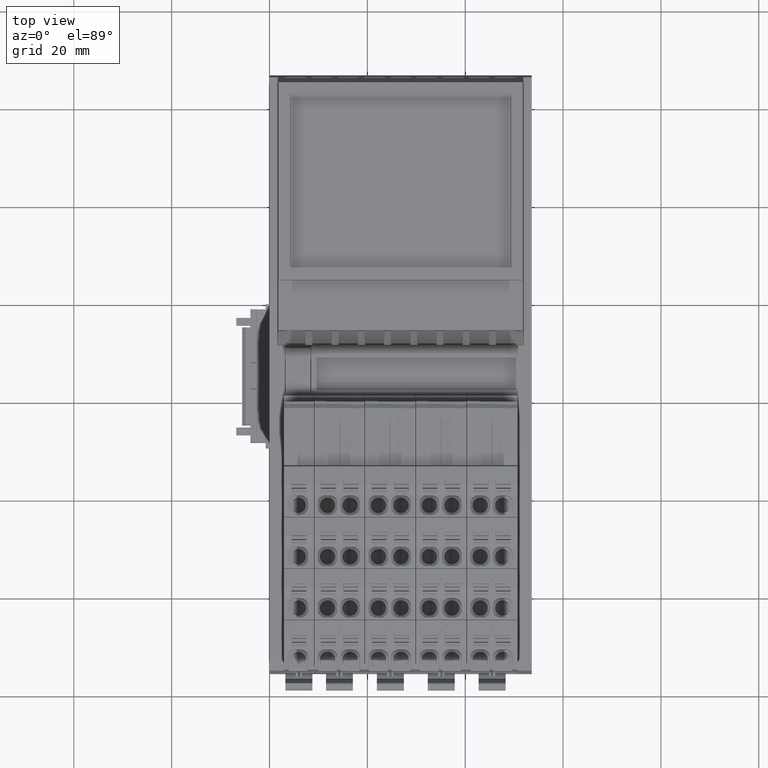
[diagram: clean part render]
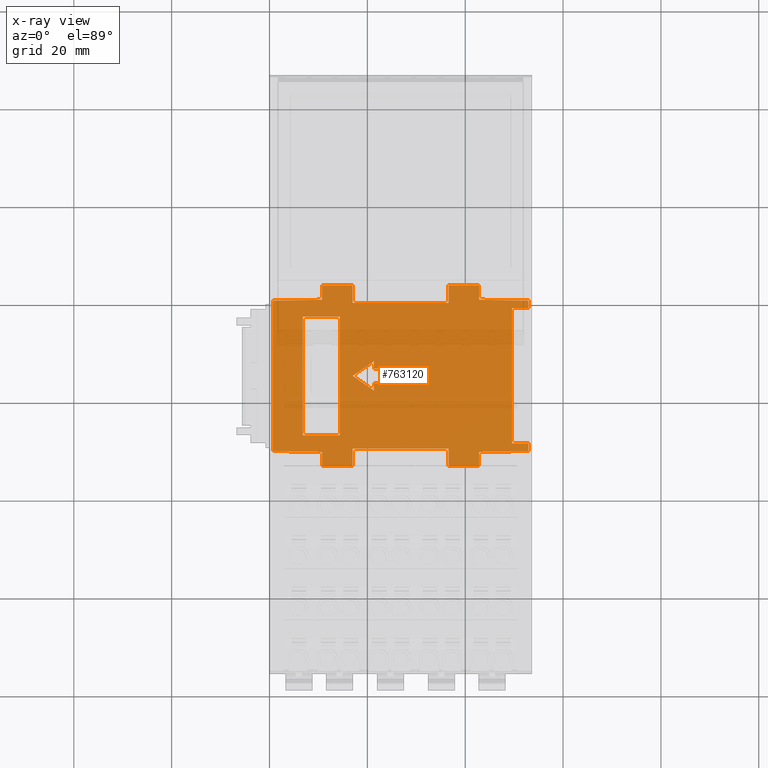
[diagram: x-ray — body ghosted, one internal face saturated and labeled with its STEP entity id]
A machine part, top view, then the same camera in x-ray: the body is ghosted and one INTERNAL B-rep face — a face not visible from any outside direction — is saturated and labeled: STEP entity #763120.
In plain terms, the highlighted planar face has unit normal (0, 0, -1).
Its self-contained STEP definition (entity closure, byte-faithful):
#663890=CARTESIAN_POINT('',(-15.5525499087241,2.99999999998455,
24.8500000010141));
#663900=VERTEX_POINT('',#663890);
#663930=CARTESIAN_POINT('',(-15.9376686943677,2.99999999998418,
2.79999999999967));
#663940=DIRECTION('',(0.0174630412089708,1.64087493594967E-14,
0.999847509469186));
#663950=VECTOR('',#663940,1.);
#663960=LINE('',#663930,#663950);
#663970=CARTESIAN_POINT('',(-15.3772024968847,2.99999999998471,
34.8895269609261));
#663980=VERTEX_POINT('',#663970);
#663990=EDGE_CURVE('',#663900,#663980,#663960,.T.);
#689030=CARTESIAN_POINT('',(1.50307890379044,3.00000000000082,
2.79999999999972));
#689040=DIRECTION('',(5.12567408284352E-11,-2.48094488399691E-16,1.));
#689050=VECTOR('',#689040,1.);
#689060=LINE('',#689030,#689050);
#689070=CARTESIAN_POINT('',(1.50307890403527,3.00000000000082,
7.57657447990371));
#689080=VERTEX_POINT('',#689070);
#689090=CARTESIAN_POINT('',(1.50307890404787,3.00000000000082,
7.82228866659571));
#689100=VERTEX_POINT('',#689090);
#689110=EDGE_CURVE('',#689080,#689100,#689060,.T.);
#689640=CARTESIAN_POINT('',(-12.1500000000179,2.99999999998779,
28.800123264971));
#689650=VERTEX_POINT('',#689640);
#689680=CARTESIAN_POINT('',(-12.1500000000179,2.9999999999878,
2.79999999999967));
#689690=DIRECTION('',(-1.22464679913189E-16,2.48094537303158E-16,-1.));
#689700=VECTOR('',#689690,1.);
#689710=LINE('',#689680,#689700);
#689720=CARTESIAN_POINT('',(-12.1500000000179,2.99999999998779,
21.2500000004907));
#689730=VERTEX_POINT('',#689720);
#689740=EDGE_CURVE('',#689650,#689730,#689710,.T.);
#690300=CARTESIAN_POINT('',(-17.5413454074475,2.99999999998265,
21.2500000004907));
#690310=DIRECTION('',(1.,9.54070156210768E-13,-1.22464679913549E-16));
#690320=VECTOR('',#690310,1.);
#690330=LINE('',#690300,#690320);
#690340=CARTESIAN_POINT('',(12.1500018849931,3.00000000001098,
21.2500000004907));
#690350=VERTEX_POINT('',#690340);
#690360=EDGE_CURVE('',#689730,#690350,#690330,.T.);
#690680=CARTESIAN_POINT('',(12.1500018852508,3.00000000001098,
2.79999999999967));
#690690=DIRECTION('',(-1.39682381849476E-11,-2.48094550629684E-16,1.));
#690700=VECTOR('',#690690,1.);
#690710=LINE('',#690680,#690700);
#690720=CARTESIAN_POINT('',(12.1500018848876,3.00000000001098,
28.8001232655858));
#690730=VERTEX_POINT('',#690720);
#690740=EDGE_CURVE('',#690350,#690730,#690710,.T.);
#708380=CARTESIAN_POINT('',(-17.5413454074475,2.99999999998265,
28.8001232648346));
#708390=DIRECTION('',(1.,9.54070156210762E-13,2.53006872261151E-11));
#708400=VECTOR('',#708390,1.);
#708410=LINE('',#708380,#708400);
#708420=EDGE_CURVE('',#689650,#690730,#708410,.T.);
#710330=CARTESIAN_POINT('',(-18.4999993603891,2.99999999998174,
2.79999999999972));
#710340=DIRECTION('',(-1.39655241635942E-11,-2.48094550628069E-16,1.));
#710350=VECTOR('',#710340,1.);
#710360=LINE('',#710330,#710350);
#710370=CARTESIAN_POINT('',(-18.49999936061,2.99999999998174,
18.6134579217745));
#710380=VERTEX_POINT('',#710370);
#710390=CARTESIAN_POINT('',(-18.4999993606971,2.99999999998173,
24.8500000012063));
#710400=VERTEX_POINT('',#710390);
#710410=EDGE_CURVE('',#710380,#710400,#710360,.T.);
#711280=CARTESIAN_POINT('',(-14.8996952278539,2.99999999998517,
18.6134579218248));
#711290=VERTEX_POINT('',#711280);
#711320=CARTESIAN_POINT('',(-17.5413454074475,2.99999999998265,
18.6134579217879));
#711330=DIRECTION('',(-1.,-9.54070156210766E-13,-1.39655241635942E-11));
#711340=VECTOR('',#711330,1.);
#711350=LINE('',#711320,#711340);
#711360=EDGE_CURVE('',#711290,#710380,#711350,.T.);
#711640=CARTESIAN_POINT('',(-17.5413454074475,2.99999999998265,
24.8500000011438));
#711650=DIRECTION('',(-1.,-9.54070156210775E-13,6.52222563283775E-11));
#711660=VECTOR('',#711650,1.);
#711670=LINE('',#711640,#711660);
#711680=EDGE_CURVE('',#663900,#710400,#711670,.T.);
#713090=CARTESIAN_POINT('',(-14.8996952278539,2.99999999998518,
-1.01345792007181));
#713100=VERTEX_POINT('',#713090);
#713130=CARTESIAN_POINT('',(-14.8996952278539,2.99999999998518,
2.79999999999972));
#713140=DIRECTION('',(2.22181972365825E-17,2.48094537303296E-16,-1.));
#713150=VECTOR('',#713140,1.);
#713160=LINE('',#713130,#713150);
#713170=EDGE_CURVE('',#711290,#713100,#713160,.T.);
#713970=CARTESIAN_POINT('',(-18.4999993602488,2.99999999998174,
-7.25000000061527));
#713980=VERTEX_POINT('',#713970);
#714010=CARTESIAN_POINT('',(-18.4999993603891,2.99999999998174,
2.79999999999972));
#714020=DIRECTION('',(-1.39655241635942E-11,-2.48094550628069E-16,1.));
#714030=VECTOR('',#714020,1.);
#714040=LINE('',#714010,#714030);
#714050=CARTESIAN_POINT('',(-18.4999993603359,2.99999999998174,
-1.01345791983699));
#714060=VERTEX_POINT('',#714050);
#714070=EDGE_CURVE('',#713980,#714060,#714040,.T.);
#715770=CARTESIAN_POINT('',(-17.5413454074475,2.99999999998266,
-1.01345791989952));
#715780=DIRECTION('',(-1.,-9.54070156210775E-13,6.52222563283775E-11));
#715790=VECTOR('',#715780,1.);
#715800=LINE('',#715770,#715790);
#715810=EDGE_CURVE('',#713100,#714060,#715800,.T.);
#716600=CARTESIAN_POINT('',(-15.552549908736,2.99999999998455,
-7.2500000005741));
#716610=VERTEX_POINT('',#716600);
#716640=CARTESIAN_POINT('',(-17.5413454074475,2.99999999998266,
-7.25000000060188));
#716650=DIRECTION('',(-1.,-9.54070156210764E-13,-1.39655241635942E-11));
#716660=VECTOR('',#716650,1.);
#716670=LINE('',#716640,#716660);
#716680=EDGE_CURVE('',#716610,#713980,#716670,.T.);
#716980=CARTESIAN_POINT('',(-15.3770195778805,2.99999999998472,
-17.3000000001173));
#716990=VERTEX_POINT('',#716980);
#717020=CARTESIAN_POINT('',(-15.7280802396095,2.99999999998438,
2.79999999999967));
#717030=DIRECTION('',(-0.0174630412089708,-1.69100844440611E-14,
0.999847509469186));
#717040=VECTOR('',#717030,1.);
#717050=LINE('',#717020,#717040);
#717060=EDGE_CURVE('',#716990,#716610,#717050,.T.);
#717830=CARTESIAN_POINT('',(15.5525499088917,3.00000000001422,
24.850000000217));
#717840=VERTEX_POINT('',#717830);
#717870=CARTESIAN_POINT('',(-17.5413454074475,2.99999999998265,
24.8499999997548));
#717880=DIRECTION('',(1.,9.54070156210764E-13,1.39655241635942E-11));
#717890=VECTOR('',#717880,1.);
#717900=LINE('',#717870,#717890);
#717910=CARTESIAN_POINT('',(18.5000000000598,3.00000000001704,
24.8500000002582));
#717920=VERTEX_POINT('',#717910);
#717930=EDGE_CURVE('',#717840,#717920,#717900,.T.);
#718610=CARTESIAN_POINT('',(18.5000000003677,3.00000000001704,
2.79999999999972));
#718620=DIRECTION('',(1.39655241635942E-11,2.48094550628069E-16,-1.));
#718630=VECTOR('',#718620,1.);
#718640=LINE('',#718610,#718630);
#718650=CARTESIAN_POINT('',(18.5000000001468,3.00000000001704,
18.6134579222912));
#718660=VERTEX_POINT('',#718650);
#718670=EDGE_CURVE('',#717920,#718660,#718640,.T.);
#718910=CARTESIAN_POINT('',(-17.5413454074475,2.99999999998265,
18.6134579217879));
#718920=DIRECTION('',(-1.,-9.54070156210766E-13,-1.39655241635942E-11));
#718930=VECTOR('',#718920,1.);
#718940=LINE('',#718910,#718930);
#718950=CARTESIAN_POINT('',(14.8996952280992,3.0000000000136,
18.6134579222409));
#718960=VERTEX_POINT('',#718950);
#718970=EDGE_CURVE('',#718660,#718960,#718940,.T.);
#719510=CARTESIAN_POINT('',(14.89969522832,3.00000000001361,
2.79999999999972));
#719520=DIRECTION('',(-1.39678671865603E-11,-2.48094550629046E-16,1.));
#719530=VECTOR('',#719520,1.);
#719540=LINE('',#719510,#719530);
#719550=CARTESIAN_POINT('',(14.8996952283733,3.00000000001361,
-1.01345792201539));
#719560=VERTEX_POINT('',#719550);
#719570=EDGE_CURVE('',#719560,#718960,#719540,.T.);
#725140=CARTESIAN_POINT('',(-13.8018901758284,2.99999999998623,
-17.3000000001398));
#725150=VERTEX_POINT('',#725140);
#725200=CARTESIAN_POINT('',(-17.5413454074475,2.99999999998266,
-17.3000000000863));
#725210=DIRECTION('',(-1.,-9.54070156210772E-13,1.42957902460328E-11));
#725220=VECTOR('',#725210,1.);
#725230=LINE('',#725200,#725220);
#725240=EDGE_CURVE('',#725150,#716990,#725230,.T.);
#729260=CARTESIAN_POINT('',(13.8011732772524,3.00000000001256,
-14.0000000002516));
#729270=VERTEX_POINT('',#729260);
#729300=CARTESIAN_POINT('',(-17.5413454074475,2.99999999998266,
-14.0000000001173));
#729310=DIRECTION('',(-1.,-9.54070156210769E-13,4.28367970946833E-12));
#729320=VECTOR('',#729310,1.);
#729330=LINE('',#729300,#729320);
#729340=CARTESIAN_POINT('',(-13.8018901758284,2.99999999998623,
-14.0000000001333));
#729350=VERTEX_POINT('',#729340);
#729360=EDGE_CURVE('',#729270,#729350,#729330,.T.);
#748080=CARTESIAN_POINT('',(-17.5413454074475,2.99999999998265,
34.889526960957));
#748090=DIRECTION('',(1.,9.5407015621077E-13,-1.43124426096209E-11));
#748100=VECTOR('',#748090,1.);
#748110=LINE('',#748080,#748100);
#748120=CARTESIAN_POINT('',(15.3772024969058,3.00000000001405,
34.8895269604859));
#748130=VERTEX_POINT('',#748120);
#748140=EDGE_CURVE('',#663980,#748130,#748110,.T.);
#751560=CARTESIAN_POINT('',(15.5494344815295,3.00000000001423,
-7.25000000013972));
#751570=VERTEX_POINT('',#751560);
#751600=CARTESIAN_POINT('',(15.724964812255,3.00000000001439,
2.79999999999967));
#751610=DIRECTION('',(0.0174630411950042,1.64104840829727E-14,
0.99984750946943));
#751620=VECTOR('',#751610,1.);
#751630=LINE('',#751600,#751620);
#751640=CARTESIAN_POINT('',(15.3739041508042,3.00000000001406,
-17.3000000002644));
#751650=VERTEX_POINT('',#751640);
#751660=EDGE_CURVE('',#751650,#751570,#751630,.T.);
#752410=CARTESIAN_POINT('',(-17.5413454074475,2.99999999998266,
-1.01345791989952));
#752420=DIRECTION('',(-1.,-9.54070156210775E-13,6.52222563283775E-11));
#752430=VECTOR('',#752420,1.);
#752440=LINE('',#752410,#752430);
#752450=CARTESIAN_POINT('',(18.5000000004209,3.00000000001704,
-1.01345792225021));
#752460=VERTEX_POINT('',#752450);
#752470=EDGE_CURVE('',#752460,#719560,#752440,.T.);
#753130=CARTESIAN_POINT('',(-17.5413454074475,2.99999999998266,
-17.3000000001234));
#753140=DIRECTION('',(-1.,-9.54070156210769E-13,4.28367970946833E-12));
#753150=VECTOR('',#753140,1.);
#753160=LINE('',#753130,#753150);
#753170=CARTESIAN_POINT('',(13.8011732772985,3.00000000001256,
-17.3000000002577));
#753180=VERTEX_POINT('',#753170);
#753190=EDGE_CURVE('',#751650,#753180,#753160,.T.);
#754650=CARTESIAN_POINT('',(13.8011732770178,3.00000000001256,
2.80256935017003));
#754660=DIRECTION('',(1.39655266517824E-11,2.95252389967941E-16,-1.));
#754670=VECTOR('',#754660,1.);
#754680=LINE('',#754650,#754670);
#754690=EDGE_CURVE('',#729270,#753180,#754680,.T.);
#754880=CARTESIAN_POINT('',(-13.8018901758284,2.99999999998649,
2.80257560645119));
#754890=DIRECTION('',(-1.2490009027033E-16,-1.43695704205325E-14,-1.));
#754900=VECTOR('',#754890,1.);
#754910=LINE('',#754880,#754900);
#754920=EDGE_CURVE('',#729350,#725150,#754910,.T.);
#755970=CARTESIAN_POINT('',(18.500000000508,3.00000000001704,
-7.25000000009852));
#755980=VERTEX_POINT('',#755970);
#756010=CARTESIAN_POINT('',(-17.5413454074475,2.99999999998266,
-7.25000000060185));
#756020=DIRECTION('',(-1.,-9.54070156210764E-13,-1.39655241635942E-11));
#756030=VECTOR('',#756020,1.);
#756040=LINE('',#756010,#756030);
#756050=EDGE_CURVE('',#755980,#751570,#756040,.T.);
#756930=CARTESIAN_POINT('',(18.5000000003677,3.00000000001704,
2.79999999999972));
#756940=DIRECTION('',(1.39655241635942E-11,2.48094550628069E-16,-1.));
#756950=VECTOR('',#756940,1.);
#756960=LINE('',#756930,#756950);
#756970=EDGE_CURVE('',#752460,#755980,#756960,.T.);
#757190=CARTESIAN_POINT('',(15.9376686948295,3.0000000000146,
2.79999999999967));
#757200=DIRECTION('',(-0.0174630412229362,-1.69100844440611E-14,
0.999847509468942));
#757210=VECTOR('',#757200,1.);
#757220=LINE('',#757190,#757210);
#757230=EDGE_CURVE('',#717840,#748130,#757220,.T.);
#757430=CARTESIAN_POINT('',(-17.5413454074475,2.99999999998265,
8.99820656103086));
#757440=DIRECTION('',(-1.,-9.54070156210782E-13,5.12567408284352E-11));
#757450=VECTOR('',#757440,1.);
#757460=LINE('',#757430,#757450);
#757470=CARTESIAN_POINT('',(1.50307890410814,3.00000000000082,
8.99820656005471));
#757480=VERTEX_POINT('',#757470);
#757490=CARTESIAN_POINT('',(-1.49692109589186,2.99999999999796,
8.99820656020848));
#757500=VERTEX_POINT('',#757490);
#757510=EDGE_CURVE('',#757480,#757500,#757460,.T.);
#757900=CARTESIAN_POINT('',(-1.49692109620956,2.99999999999796,
2.79999999999972));
#757910=DIRECTION('',(-5.12567408284352E-11,2.48094488399691E-16,-1.));
#757920=VECTOR('',#757910,1.);
#757930=LINE('',#757900,#757920);
#757940=CARTESIAN_POINT('',(-1.49692109562231,2.99999999999796,
14.2571009484235));
#757950=VERTEX_POINT('',#757940);
#757960=CARTESIAN_POINT('',(-1.49692109580182,2.99999999999796,
10.7547683793525));
#757970=VERTEX_POINT('',#757960);
#757980=EDGE_CURVE('',#757950,#757970,#757930,.T.);
#758370=CARTESIAN_POINT('',(1.50307890379044,3.00000000000082,
2.79999999999972));
#758380=DIRECTION('',(5.12567408284352E-11,-2.48094488399691E-16,1.));
#758390=VECTOR('',#758380,1.);
#758400=LINE('',#758370,#758390);
#758410=CARTESIAN_POINT('',(1.50307890413406,3.00000000000082,
9.5039353188157));
#758420=VERTEX_POINT('',#758410);
#758430=CARTESIAN_POINT('',(1.50307890417651,3.00000000000082,
10.3320835735297));
#758440=VERTEX_POINT('',#758430);
#758450=EDGE_CURVE('',#758420,#758440,#758400,.T.);
#758840=CARTESIAN_POINT('',(-17.5413454074475,2.99999999998265,
10.7547683801749));
#758850=DIRECTION('',(1.,9.54070156210782E-13,-5.12567408284352E-11));
#758860=VECTOR('',#758850,1.);
#758870=LINE('',#758840,#758860);
#758880=CARTESIAN_POINT('',(1.50307890419818,3.00000000000082,
10.7547683791987));
#758890=VERTEX_POINT('',#758880);
#758900=EDGE_CURVE('',#757970,#758890,#758870,.T.);
#759220=CARTESIAN_POINT('',(-17.5413454074475,2.99999999998265,
9.50393531979185));
#759230=DIRECTION('',(1.,9.54070156210782E-13,-5.12567408284352E-11));
#759240=VECTOR('',#759230,1.);
#759250=LINE('',#759220,#759240);
#759260=CARTESIAN_POINT('',(-1.49692109586594,2.99999999999796,
9.50393531896947));
#759270=VERTEX_POINT('',#759260);
#759280=EDGE_CURVE('',#759270,#758420,#759250,.T.);
#759600=CARTESIAN_POINT('',(-17.5413454074475,2.99999999998265,
8.48922717430986));
#759610=DIRECTION('',(1.,9.54070156210782E-13,-5.12567408284352E-11));
#759620=VECTOR('',#759610,1.);
#759630=LINE('',#759600,#759620);
#759640=CARTESIAN_POINT('',(-1.49692109591795,2.99999999999796,
8.48922717348748));
#759650=VERTEX_POINT('',#759640);
#759660=CARTESIAN_POINT('',(1.50307890408205,3.00000000000082,
8.48922717333371));
#759670=VERTEX_POINT('',#759660);
#759680=EDGE_CURVE('',#759650,#759670,#759630,.T.);
#760070=CARTESIAN_POINT('',(1.50307890379044,3.00000000000082,
2.79999999999972));
#760080=DIRECTION('',(5.12567408284352E-11,-2.48094488399691E-16,1.));
#760090=VECTOR('',#760080,1.);
#760100=LINE('',#760070,#760090);
#760110=CARTESIAN_POINT('',(1.50307890437769,3.00000000000082,
14.2571009482697));
#760120=VERTEX_POINT('',#760110);
#760130=EDGE_CURVE('',#758890,#760120,#760100,.T.);
#760450=CARTESIAN_POINT('',(-1.49692109620956,2.99999999999796,
2.79999999999972));
#760460=DIRECTION('',(-5.12567408284352E-11,2.48094488399691E-16,-1.));
#760470=VECTOR('',#760460,1.);
#760480=LINE('',#760450,#760470);
#760490=CARTESIAN_POINT('',(-1.49692109582349,2.99999999999796,
10.3320835736835));
#760500=VERTEX_POINT('',#760490);
#760510=EDGE_CURVE('',#760500,#759270,#760480,.T.);
#760830=CARTESIAN_POINT('',(-17.5413454074475,2.99999999998265,
7.82228866757186));
#760840=DIRECTION('',(-1.,-9.54070156210782E-13,5.12567408284352E-11));
#760850=VECTOR('',#760840,1.);
#760860=LINE('',#760830,#760850);
#760870=CARTESIAN_POINT('',(-1.49692109595213,2.99999999999796,
7.82228866674948));
#760880=VERTEX_POINT('',#760870);
#760890=EDGE_CURVE('',#689100,#760880,#760860,.T.);
#761450=CARTESIAN_POINT('',(-1.49692109620956,2.99999999999796,
2.79999999999972));
#761460=DIRECTION('',(-5.12567408284352E-11,2.48094488399691E-16,-1.));
#761470=VECTOR('',#761460,1.);
#761480=LINE('',#761450,#761470);
#761490=CARTESIAN_POINT('',(-1.49692109596473,2.99999999999796,
7.57657448005748));
#761500=VERTEX_POINT('',#761490);
#761510=EDGE_CURVE('',#760880,#761500,#761480,.T.);
#761830=CARTESIAN_POINT('',(-1.49692109620956,2.99999999999796,
2.79999999999972));
#761840=DIRECTION('',(-5.12567408284352E-11,2.48094488399691E-16,-1.));
#761850=VECTOR('',#761840,1.);
#761860=LINE('',#761830,#761850);
#761870=EDGE_CURVE('',#757500,#759650,#761860,.T.);
#762070=CARTESIAN_POINT('',(14.3377423483163,3.00000000001307,
15.499999997827));
#762080=DIRECTION('',(9.54070156210768E-13,-1.,-2.48094537303275E-16));
#762090=DIRECTION('',(-1.,-9.54070156210781E-13,5.12567408284352E-11));
#762100=AXIS2_PLACEMENT_3D('',#762070,#762080,#762090);
#762110=PLANE('',#762100);
#762120=ORIENTED_EDGE('',*,*,#689740,.T.);
#762130=ORIENTED_EDGE('',*,*,#708420,.F.);
#762140=ORIENTED_EDGE('',*,*,#690740,.T.);
#762150=ORIENTED_EDGE('',*,*,#690360,.T.);
#762160=EDGE_LOOP('',(#762150,#762140,#762130,#762120));
#762170=FACE_BOUND('',#762160,.T.);
#762180=CARTESIAN_POINT('',(-17.5413454074475,2.99999999998265,
7.57657448087986));
#762190=DIRECTION('',(1.,9.54070156210782E-13,-5.12567408284352E-11));
#762200=VECTOR('',#762190,1.);
#762210=LINE('',#762180,#762200);
#762220=EDGE_CURVE('',#761500,#689080,#762210,.T.);
#762230=ORIENTED_EDGE('',*,*,#762220,.T.);
#762240=ORIENTED_EDGE('',*,*,#761510,.T.);
#762250=ORIENTED_EDGE('',*,*,#760890,.T.);
#762260=ORIENTED_EDGE('',*,*,#689110,.T.);
#762270=EDGE_LOOP('',(#762260,#762250,#762240,#762230));
#762280=FACE_BOUND('',#762270,.T.);
#762290=ORIENTED_EDGE('',*,*,#758450,.T.);
#762300=ORIENTED_EDGE('',*,*,#759280,.T.);
#762310=ORIENTED_EDGE('',*,*,#760510,.T.);
#762320=CARTESIAN_POINT('',(-17.5413454074475,2.99999999998265,
10.3320835745059));
#762330=DIRECTION('',(-1.,-9.54070156210782E-13,5.12567408284352E-11));
#762340=VECTOR('',#762330,1.);
#762350=LINE('',#762320,#762340);
#762360=EDGE_CURVE('',#758440,#760500,#762350,.T.);
#762370=ORIENTED_EDGE('',*,*,#762360,.T.);
#762380=EDGE_LOOP('',(#762370,#762310,#762300,#762290));
#762390=FACE_BOUND('',#762380,.T.);
#762400=ORIENTED_EDGE('',*,*,#759680,.T.);
#762410=ORIENTED_EDGE('',*,*,#761870,.T.);
#762420=ORIENTED_EDGE('',*,*,#757510,.T.);
#762430=CARTESIAN_POINT('',(1.50307890379044,3.00000000000082,
2.79999999999972));
#762440=DIRECTION('',(5.12567408284352E-11,-2.48094488399691E-16,1.));
#762450=VECTOR('',#762440,1.);
#762460=LINE('',#762430,#762450);
#762470=EDGE_CURVE('',#759670,#757480,#762460,.T.);
#762480=ORIENTED_EDGE('',*,*,#762470,.T.);
#762490=EDGE_LOOP('',(#762480,#762420,#762410,#762400));
#762500=FACE_BOUND('',#762490,.T.);
#762510=ORIENTED_EDGE('',*,*,#760130,.T.);
#762520=ORIENTED_EDGE('',*,*,#758900,.T.);
#762530=ORIENTED_EDGE('',*,*,#757980,.T.);
#762540=CARTESIAN_POINT('',(-17.5413454074475,2.99999999998265,
14.2571009492459));
#762550=DIRECTION('',(1.,9.54070156210782E-13,-5.12567408284352E-11));
#762560=VECTOR('',#762550,1.);
#762570=LINE('',#762540,#762560);
#762580=CARTESIAN_POINT('',(-2.99692109562231,2.99999999999653,
14.2571009485004));
#762590=VERTEX_POINT('',#762580);
#762600=EDGE_CURVE('',#762590,#757950,#762570,.T.);
#762610=ORIENTED_EDGE('',*,*,#762600,.T.);
#762620=CARTESIAN_POINT('',(-10.8931076263506,2.999999999989,
2.79999999999972));
#762630=DIRECTION('',(-0.567476634196581,-5.41178213353533E-13,
-0.823389500565145));
#762640=VECTOR('',#762630,1.);
#762650=LINE('',#762620,#762640);
#762660=CARTESIAN_POINT('',(0.00307890460081239,2.99999999999939,
18.6099999984786));
#762670=VERTEX_POINT('',#762660);
#762680=EDGE_CURVE('',#762670,#762590,#762650,.T.);
#762690=ORIENTED_EDGE('',*,*,#762680,.T.);
#762700=CARTESIAN_POINT('',(10.8992654331617,3.00000000000979,
2.79999999999972));
#762710=DIRECTION('',(-0.567476634112173,-5.41539035836536E-13,
0.82338950062332));
#762720=VECTOR('',#762710,1.);
#762730=LINE('',#762700,#762720);
#762740=CARTESIAN_POINT('',(3.0030789043777,3.00000000000225,
14.2571009481928));
#762750=VERTEX_POINT('',#762740);
#762760=EDGE_CURVE('',#762750,#762670,#762730,.T.);
#762770=ORIENTED_EDGE('',*,*,#762760,.T.);
#762780=CARTESIAN_POINT('',(-17.5413454074475,2.99999999998265,
14.2571009492459));
#762790=DIRECTION('',(1.,9.54070156210782E-13,-5.12567408284352E-11));
#762800=VECTOR('',#762790,1.);
#762810=LINE('',#762780,#762800);
#762820=EDGE_CURVE('',#760120,#762750,#762810,.T.);
#762830=ORIENTED_EDGE('',*,*,#762820,.T.);
#762840=EDGE_LOOP('',(#762830,#762770,#762690,#762610,#762530,#762520,
#762510));
#762850=FACE_BOUND('',#762840,.T.);
#762860=ORIENTED_EDGE('',*,*,#752470,.F.);
#762870=ORIENTED_EDGE('',*,*,#719570,.F.);
#762880=ORIENTED_EDGE('',*,*,#718970,.T.);
#762890=ORIENTED_EDGE('',*,*,#718670,.T.);
#762900=ORIENTED_EDGE('',*,*,#717930,.T.);
#762910=ORIENTED_EDGE('',*,*,#757230,.F.);
#762920=ORIENTED_EDGE('',*,*,#748140,.T.);
#762930=ORIENTED_EDGE('',*,*,#663990,.T.);
#762940=ORIENTED_EDGE('',*,*,#711680,.F.);
#762950=ORIENTED_EDGE('',*,*,#710410,.T.);
#762960=ORIENTED_EDGE('',*,*,#711360,.T.);
#762970=ORIENTED_EDGE('',*,*,#713170,.F.);
#762980=ORIENTED_EDGE('',*,*,#715810,.F.);
#762990=ORIENTED_EDGE('',*,*,#714070,.T.);
#763000=ORIENTED_EDGE('',*,*,#716680,.T.);
#763010=ORIENTED_EDGE('',*,*,#717060,.T.);
#763020=ORIENTED_EDGE('',*,*,#725240,.T.);
#763030=ORIENTED_EDGE('',*,*,#754920,.T.);
#763040=ORIENTED_EDGE('',*,*,#729360,.T.);
#763050=ORIENTED_EDGE('',*,*,#754690,.F.);
#763060=ORIENTED_EDGE('',*,*,#753190,.T.);
#763070=ORIENTED_EDGE('',*,*,#751660,.F.);
#763080=ORIENTED_EDGE('',*,*,#756050,.T.);
#763090=ORIENTED_EDGE('',*,*,#756970,.T.);
#763100=EDGE_LOOP('',(#763090,#763080,#763070,#763060,#763050,#763040,
#763030,#763020,#763010,#763000,#762990,#762980,#762970,#762960,#762950,
#762940,#762930,#762920,#762910,#762900,#762890,#762880,#762870,#762860)
);
#763110=FACE_OUTER_BOUND('',#763100,.T.);
#763120=ADVANCED_FACE('',(#762170,#762280,#762390,#762500,#762850,
#763110),#762110,.F.);